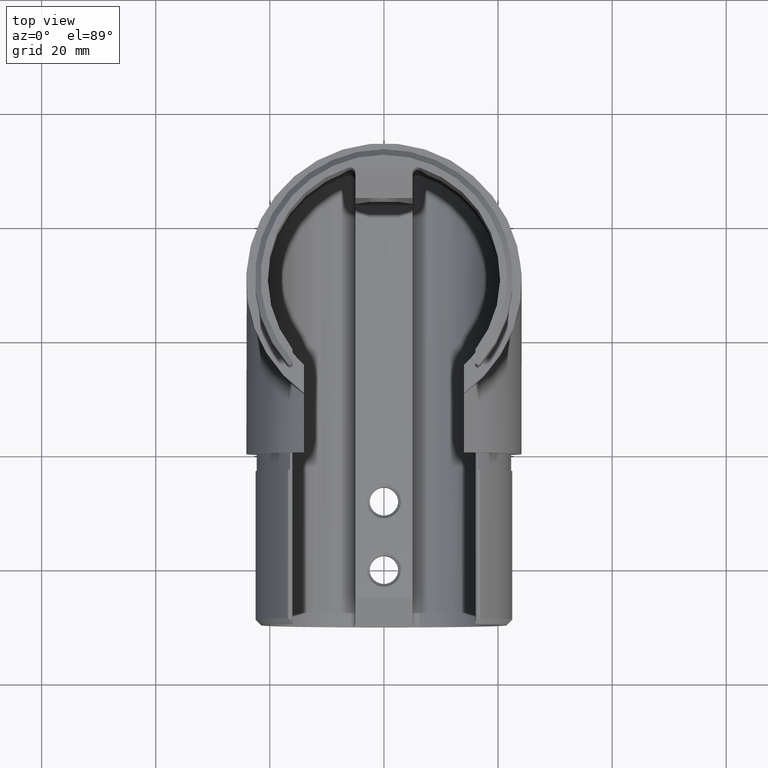
[diagram: clean part render]
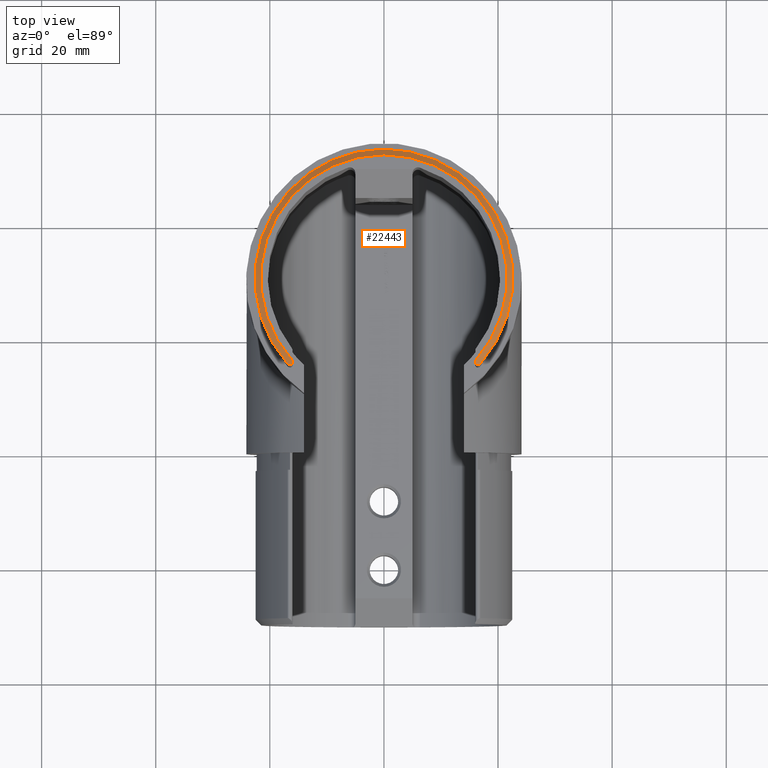
[diagram: same view with one face highlighted and labeled with its STEP entity id]
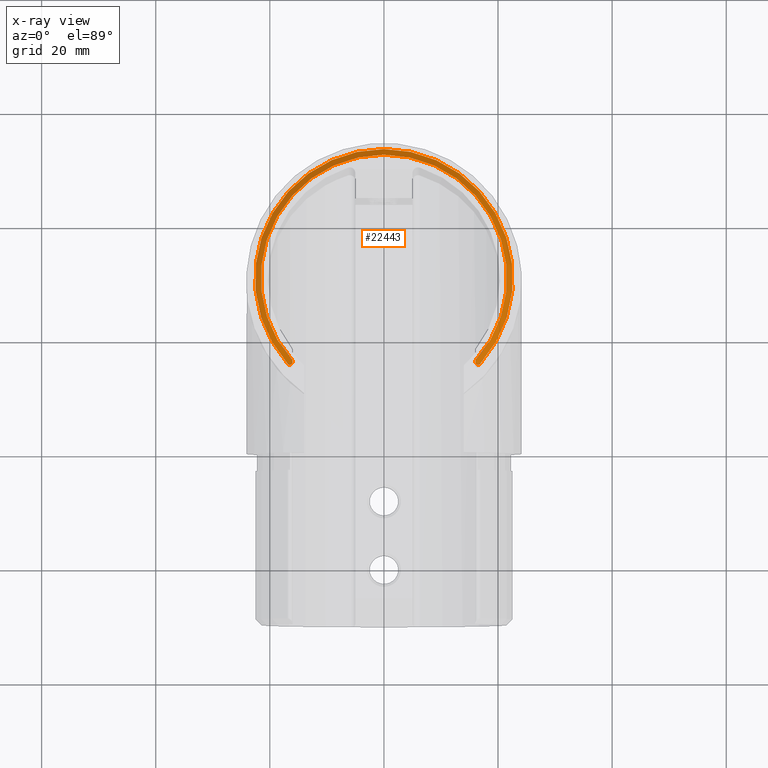
[diagram: x-ray of the same camera — body ghosted, the highlighted face saturated]
A machine part, top view. The second image highlights one B-rep face of the part: STEP entity #22443.
The next image is the same camera in x-ray: the body ghosted, the highlighted face saturated — about 0% of this face is hidden behind the body in this view.
In plain terms, the highlighted conical surface has half-angle 45 deg.
Its self-contained STEP definition (entity closure, byte-faithful):
#12 = DIRECTION ( 'NONE',  ( -1.000000000000000000, 0.0000000000000000000, 0.0000000000000000000 ) ) ;
#427 = CARTESIAN_POINT ( 'NONE',  ( 16.77927292842649000, 14.72860271173848400, 58.86244713449256200 ) ) ;
#912 = CARTESIAN_POINT ( 'NONE',  ( -16.45978068113279500, 14.63804010851799500, 59.03747056491419400 ) ) ;
#1372 = EDGE_CURVE ( 'NONE', #10570, #16360, #7197, .T. ) ;
#1707 = CIRCLE ( 'NONE', #23405, 21.59999999999998400 ) ;
#3347 = DIRECTION ( 'NONE',  ( 0.0000000000000000000, 0.0000000000000000000, 1.000000000000000000 ) ) ;
#3644 = ORIENTED_EDGE ( 'NONE', *, *, #4277, .F. ) ;
#3843 = CARTESIAN_POINT ( 'NONE',  ( 0.0000000000000000000, 29.84999999999999800, 59.85000000000000100 ) ) ;
#3851 = CARTESIAN_POINT ( 'NONE',  ( 16.61783815175828800, 14.65875891011839200, 58.93501237649126500 ) ) ;
#4277 = EDGE_CURVE ( 'NONE', #5013, #22000, #10536, .T. ) ;
#4305 = CIRCLE ( 'NONE', #5602, 22.60000000000000100 ) ;
#5013 = VERTEX_POINT ( 'NONE', #20086 ) ;
#5249 = CARTESIAN_POINT ( 'NONE',  ( 0.0000000000000000000, 29.84999999999999800, 59.85000000000000100 ) ) ;
#5540 = B_SPLINE_CURVE_WITH_KNOTS ( 'NONE', 3,
 ( #21101, #9935, #19014, #15336, #17181, #912, #9855, #15419, #11869, #17431, #15574, #15492 ),
 .UNSPECIFIED., .F., .F.,
 ( 4, 2, 2, 2, 2, 4 ),
 ( 0.0000000000000000000, 0.0001893812489046889600, 0.0003787624978093779100, 0.0007575249956187445500, 0.001136287493428111000, 0.001515049991237477600 ),
 .UNSPECIFIED. ) ;
#5545 = CARTESIAN_POINT ( 'NONE',  ( -16.00000000000000400, 15.33931428222638300, 59.85000000000000100 ) ) ;
#5581 = ORIENTED_EDGE ( 'NONE', *, *, #10765, .T. ) ;
#5602 = AXIS2_PLACEMENT_3D ( 'NONE', #12492, #17426, #8804 ) ;
#5631 = CARTESIAN_POINT ( 'NONE',  ( -16.00000000000000400, 15.27534306398376500, 59.80702471097676900 ) ) ;
#5896 = ORIENTED_EDGE ( 'NONE', *, *, #20741, .T. ) ;
#5928 = CARTESIAN_POINT ( 'NONE',  ( 16.83059204011165000, 14.76705289338987000, 58.84999999999995900 ) ) ;
#6502 = CONICAL_SURFACE ( 'NONE', #17179, 21.59999999999998400, 0.7853981633974396200 ) ;
#7197 = B_SPLINE_CURVE_WITH_KNOTS ( 'NONE', 3,
 ( #5545, #5631, #20225, #18477 ),
 .UNSPECIFIED., .F., .F.,
 ( 4, 4 ),
 ( 0.0000000000000000000, 0.0002311817051569399300 ),
 .UNSPECIFIED. ) ;
#7636 = FACE_OUTER_BOUND ( 'NONE', #9282, .T. ) ;
#7722 = CARTESIAN_POINT ( 'NONE',  ( -16.87330316742081500, 14.81498619154918300, 58.84999999999996600 ) ) ;
#7872 = CARTESIAN_POINT ( 'NONE',  ( 16.00000000000000400, 15.33931428222638300, 59.85000000000000100 ) ) ;
#8804 = DIRECTION ( 'NONE',  ( 1.000000000000000000, 0.0000000000000000000, 0.0000000000000000000 ) ) ;
#8942 = CARTESIAN_POINT ( 'NONE',  ( 16.00000000000000400, 15.27534306398527500, 59.80702471097779900 ) ) ;
#9282 = EDGE_LOOP ( 'NONE', ( #3644, #5581, #23290, #5896, #23560, #10478 ) ) ;
#9363 = CARTESIAN_POINT ( 'NONE',  ( 16.00000000000000400, 15.04172783590478000, 59.64910907956013400 ) ) ;
#9855 = CARTESIAN_POINT ( 'NONE',  ( -16.36234966533935900, 14.65833713782039600, 59.12260866581833300 ) ) ;
#9935 = CARTESIAN_POINT ( 'NONE',  ( -16.83057574638361200, 14.76703460747298100, 58.84999999999997300 ) ) ;
#10478 = ORIENTED_EDGE ( 'NONE', *, *, #13381, .F. ) ;
#10536 = B_SPLINE_CURVE_WITH_KNOTS ( 'NONE', 3,
 ( #19626, #14310, #8942, #23304 ),
 .UNSPECIFIED., .F., .F.,
 ( 4, 4 ),
 ( 0.001530635616913767700, 0.001761817322065237900 ),
 .UNSPECIFIED. ) ;
#10570 = VERTEX_POINT ( 'NONE', #19947 ) ;
#10765 = EDGE_CURVE ( 'NONE', #5013, #21053, #14989, .T. ) ;
#11110 = CARTESIAN_POINT ( 'NONE',  ( 16.03185223621762000, 14.95021687865824200, 59.56339792279096900 ) ) ;
#11869 = CARTESIAN_POINT ( 'NONE',  ( -16.13034885276009700, 14.79906359690092200, 59.38830540661130200 ) ) ;
#12492 = CARTESIAN_POINT ( 'NONE',  ( 0.0000000000000000000, 29.84999999999999800, 58.84999999999996600 ) ) ;
#12814 = VERTEX_POINT ( 'NONE', #7722 ) ;
#12990 = CARTESIAN_POINT ( 'NONE',  ( 16.19867931465650900, 14.73844259132496300, 59.29699370300661300 ) ) ;
#13074 = CARTESIAN_POINT ( 'NONE',  ( 16.87330316742081500, 14.81498619154918300, 58.84999999999996600 ) ) ;
#13151 = CARTESIAN_POINT ( 'NONE',  ( 16.00000000000000400, 15.14761924041323100, 59.72075703113732500 ) ) ;
#13381 = EDGE_CURVE ( 'NONE', #22000, #10570, #1707, .T. ) ;
#14310 = CARTESIAN_POINT ( 'NONE',  ( 16.00000000000000400, 15.21144531449552800, 59.76394285426481200 ) ) ;
#14835 = CARTESIAN_POINT ( 'NONE',  ( 16.36152705768642700, 14.65869702796760700, 59.12345609398193600 ) ) ;
#14989 = B_SPLINE_CURVE_WITH_KNOTS ( 'NONE', 3,
 ( #13151, #9363, #11110, #16691, #12990, #14835, #16930, #3851, #15080, #427, #5928, #13074 ),
 .UNSPECIFIED., .F., .F.,
 ( 4, 2, 2, 2, 2, 4 ),
 ( 6.831903995389913500E-016, 0.0003772778480104126200, 0.0007545556960201419800, 0.001131833544029871600, 0.001320472468034740400, 0.001509111392039609600 ),
 .UNSPECIFIED. ) ;
#15080 = CARTESIAN_POINT ( 'NONE',  ( 16.67270283028078400, 14.67460554899612600, 58.90518895828935100 ) ) ;
#15336 = CARTESIAN_POINT ( 'NONE',  ( -16.67309718334161400, 14.67475796577294200, 58.90499979760977600 ) ) ;
#15419 = CARTESIAN_POINT ( 'NONE',  ( -16.19823541999631500, 14.73861712696597700, 59.29743762546233700 ) ) ;
#15492 = CARTESIAN_POINT ( 'NONE',  ( -16.00000000000000400, 15.14761924040870300, 59.72075703113425500 ) ) ;
#15574 = CARTESIAN_POINT ( 'NONE',  ( -16.00000000000001100, 15.04182662562401000, 59.64917592237931400 ) ) ;
#16352 = DIRECTION ( 'NONE',  ( 0.0000000000000000000, 0.0000000000000000000, -1.000000000000000000 ) ) ;
#16360 = VERTEX_POINT ( 'NONE', #23756 ) ;
#16691 = CARTESIAN_POINT ( 'NONE',  ( 16.13029567968719700, 14.79912428104608000, 59.38838569096346700 ) ) ;
#16930 = CARTESIAN_POINT ( 'NONE',  ( 16.45846581966970800, 14.63795668338714000, 59.03838187468426200 ) ) ;
#17179 = AXIS2_PLACEMENT_3D ( 'NONE', #3843, #16352, #12 ) ;
#17181 = CARTESIAN_POINT ( 'NONE',  ( -16.61779404188008900, 14.65879750908406500, 58.93507039972731600 ) ) ;
#17426 = DIRECTION ( 'NONE',  ( 0.0000000000000000000, 0.0000000000000000000, -1.000000000000000000 ) ) ;
#17431 = CARTESIAN_POINT ( 'NONE',  ( -16.03186819653736000, 14.95017147044481300, 59.56335531216863900 ) ) ;
#17503 = EDGE_CURVE ( 'NONE', #12814, #21053, #4305, .T. ) ;
#17776 = CARTESIAN_POINT ( 'NONE',  ( 16.87330316742081500, 14.81498619154918300, 58.84999999999996600 ) ) ;
#18477 = CARTESIAN_POINT ( 'NONE',  ( -16.00000000000000400, 15.14761924040870300, 59.72075703113425500 ) ) ;
#19014 = CARTESIAN_POINT ( 'NONE',  ( -16.77951238180419600, 14.72877171642282300, 58.86238228102786300 ) ) ;
#19626 = CARTESIAN_POINT ( 'NONE',  ( 16.00000000000000400, 15.14761924041323100, 59.72075703113732500 ) ) ;
#19930 = DIRECTION ( 'NONE',  ( 1.000000000000000000, 0.0000000000000000000, 0.0000000000000000000 ) ) ;
#19947 = CARTESIAN_POINT ( 'NONE',  ( -16.00000000000000400, 15.33931428222638300, 59.85000000000000100 ) ) ;
#20086 = CARTESIAN_POINT ( 'NONE',  ( 16.00000000000000400, 15.14761924041323100, 59.72075703113732500 ) ) ;
#20225 = CARTESIAN_POINT ( 'NONE',  ( -16.00000000000000400, 15.21144531449250600, 59.76394285426278000 ) ) ;
#20741 = EDGE_CURVE ( 'NONE', #12814, #16360, #5540, .T. ) ;
#21053 = VERTEX_POINT ( 'NONE', #17776 ) ;
#21101 = CARTESIAN_POINT ( 'NONE',  ( -16.87330316742081500, 14.81498619154918300, 58.84999999999996600 ) ) ;
#22000 = VERTEX_POINT ( 'NONE', #7872 ) ;
#22443 = ADVANCED_FACE ( 'NONE', ( #7636 ), #6502, .T. ) ;
#23290 = ORIENTED_EDGE ( 'NONE', *, *, #17503, .F. ) ;
#23304 = CARTESIAN_POINT ( 'NONE',  ( 16.00000000000000400, 15.33931428222638300, 59.85000000000000100 ) ) ;
#23405 = AXIS2_PLACEMENT_3D ( 'NONE', #5249, #3347, #19930 ) ;
#23560 = ORIENTED_EDGE ( 'NONE', *, *, #1372, .F. ) ;
#23756 = CARTESIAN_POINT ( 'NONE',  ( -16.00000000000000400, 15.14761924040870300, 59.72075703113425500 ) ) ;